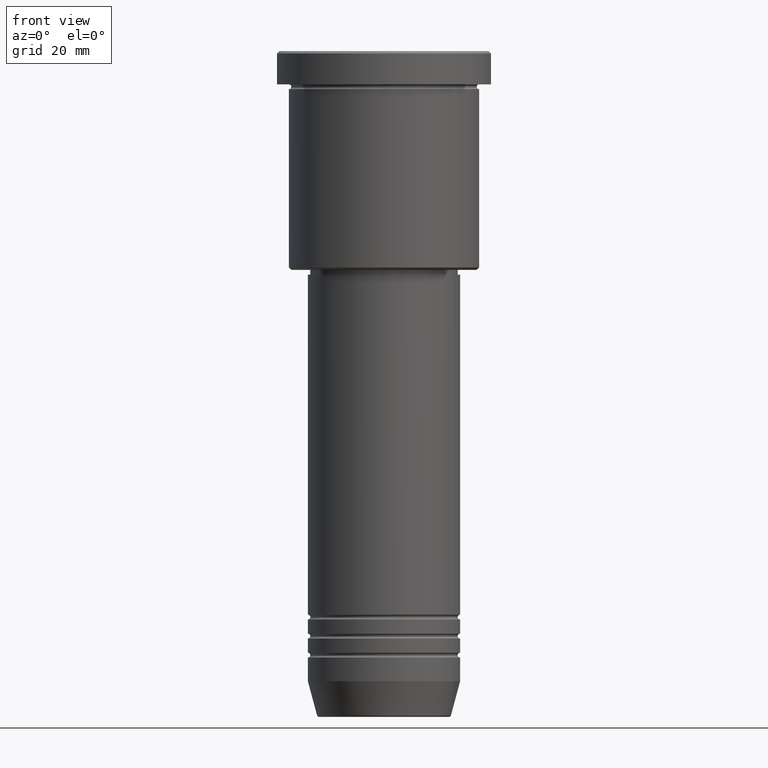
[diagram: clean part render]
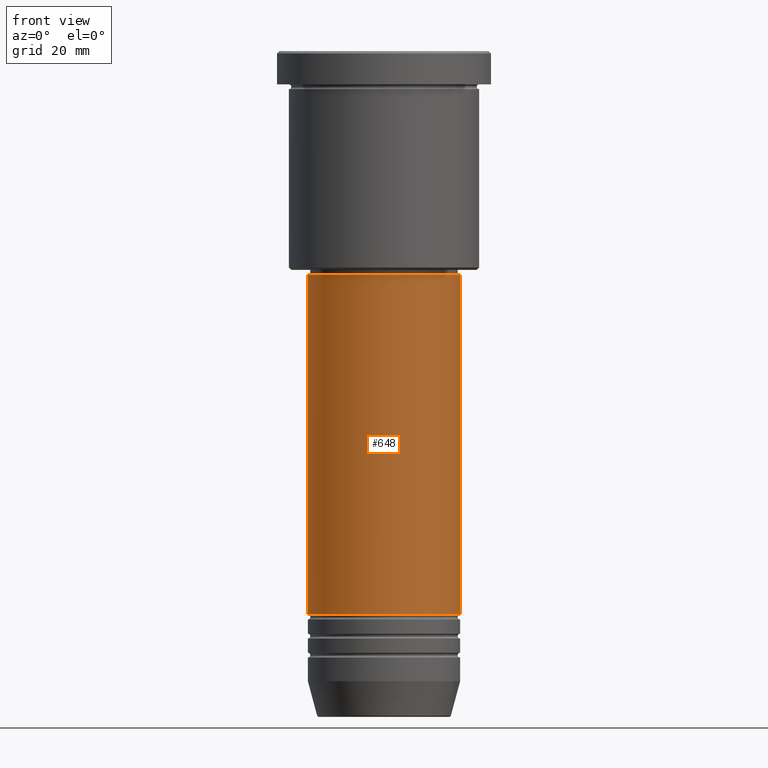
[diagram: same view with one face highlighted and labeled with its STEP entity id]
A machine part, front view. The second image highlights one B-rep face of the part: STEP entity #648.
In plain terms, the highlighted cylindrical surface (partial cylindrical patch) has radius 16 mm, axis along (-0, -0, 1).
Its self-contained STEP definition (entity closure, byte-faithful):
#14 = EDGE_CURVE ( 'NONE', #959, #500, #180, .T. ) ;
#23 = DIRECTION ( 'NONE',  ( -0.000000000000000000, -0.000000000000000000, 1.000000000000000000 ) ) ;
#28 = DIRECTION ( 'NONE',  ( 1.000000000000000000, 0.000000000000000000, 0.000000000000000000 ) ) ;
#49 = ORIENTED_EDGE ( 'NONE', *, *, #356, .F. ) ;
#91 = VERTEX_POINT ( 'NONE', #397 ) ;
#132 = LINE ( 'NONE', #1016, #757 ) ;
#154 = AXIS2_PLACEMENT_3D ( 'NONE', #899, #892, #450 ) ;
#180 = CIRCLE ( 'NONE', #889, 16.00000000000000000 ) ;
#206 = CARTESIAN_POINT ( 'NONE',  ( 0.000000000000000000, 0.000000000000000000, 0.000000000000000000 ) ) ;
#286 = VERTEX_POINT ( 'NONE', #1087 ) ;
#327 = CYLINDRICAL_SURFACE ( 'NONE', #504, 16.00000000000000000 ) ;
#356 = EDGE_CURVE ( 'NONE', #91, #959, #682, .T. ) ;
#369 = EDGE_LOOP ( 'NONE', ( #49, #1147, #668, #442 ) ) ;
#397 = CARTESIAN_POINT ( 'NONE',  ( -16.00000000000000000, 1.959434878635765131E-15, -118.5000000000000000 ) ) ;
#426 = EDGE_CURVE ( 'NONE', #91, #286, #612, .T. ) ;
#442 = ORIENTED_EDGE ( 'NONE', *, *, #14, .F. ) ;
#450 = DIRECTION ( 'NONE',  ( 1.000000000000000000, 0.000000000000000000, 0.000000000000000000 ) ) ;
#478 = DIRECTION ( 'NONE',  ( -0.000000000000000000, -0.000000000000000000, 1.000000000000000000 ) ) ;
#498 = DIRECTION ( 'NONE',  ( -0.000000000000000000, -0.000000000000000000, 1.000000000000000000 ) ) ;
#500 = VERTEX_POINT ( 'NONE', #990 ) ;
#504 = AXIS2_PLACEMENT_3D ( 'NONE', #206, #23, #28 ) ;
#562 = VECTOR ( 'NONE', #958, 1000.000000000000000 ) ;
#612 = CIRCLE ( 'NONE', #154, 16.00000000000000000 ) ;
#648 = ADVANCED_FACE ( 'NONE', ( #854 ), #327, .T. ) ;
#668 = ORIENTED_EDGE ( 'NONE', *, *, #710, .T. ) ;
#682 = LINE ( 'NONE', #1035, #562 ) ;
#710 = EDGE_CURVE ( 'NONE', #286, #500, #132, .T. ) ;
#757 = VECTOR ( 'NONE', #478, 1000.000000000000000 ) ;
#854 = FACE_OUTER_BOUND ( 'NONE', #369, .T. ) ;
#881 = DIRECTION ( 'NONE',  ( 1.000000000000000000, 0.000000000000000000, 0.000000000000000000 ) ) ;
#889 = AXIS2_PLACEMENT_3D ( 'NONE', #955, #498, #881 ) ;
#892 = DIRECTION ( 'NONE',  ( -0.000000000000000000, -0.000000000000000000, 1.000000000000000000 ) ) ;
#899 = CARTESIAN_POINT ( 'NONE',  ( 0.000000000000000000, 0.000000000000000000, -118.5000000000000000 ) ) ;
#955 = CARTESIAN_POINT ( 'NONE',  ( 0.000000000000000000, 0.000000000000000000, -47.00000000000003553 ) ) ;
#958 = DIRECTION ( 'NONE',  ( -0.000000000000000000, -0.000000000000000000, 1.000000000000000000 ) ) ;
#959 = VERTEX_POINT ( 'NONE', #1088 ) ;
#990 = CARTESIAN_POINT ( 'NONE',  ( 16.00000000000000000, 0.000000000000000000, -47.00000000000003553 ) ) ;
#1016 = CARTESIAN_POINT ( 'NONE',  ( 16.00000000000000000, 0.000000000000000000, 0.000000000000000000 ) ) ;
#1035 = CARTESIAN_POINT ( 'NONE',  ( -16.00000000000000000, 1.959434878635765131E-15, 0.000000000000000000 ) ) ;
#1087 = CARTESIAN_POINT ( 'NONE',  ( 16.00000000000000000, 0.000000000000000000, -118.5000000000000000 ) ) ;
#1088 = CARTESIAN_POINT ( 'NONE',  ( -16.00000000000000000, 1.959434878635765131E-15, -47.00000000000003553 ) ) ;
#1147 = ORIENTED_EDGE ( 'NONE', *, *, #426, .T. ) ;